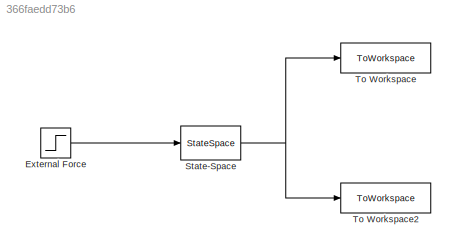
MODEL slx_366faedd73b6
KIND model
CONFIG AbsTol = auto
CONFIG EnableMultiTasking = off
CONFIG FixedStep = auto
CONFIG MaxStep = auto
CONFIG MinStep = auto
CONFIG RelTol = 1e-3
CONFIG SampleTimeConstraint = Unconstrained
CONFIG Solver = ode45
CONFIG SolverName = ode45
CONFIG StartTime = 0.0
CONFIG StopTime = 20
WORKSPACE source: mxarray member
WORKSPACE A_mat = 1
BLOCK [Step] External Force 
  After = stepf
  Before = stepi
  SampleTime = 0
  Time = stept
BLOCK [StateSpace] State-Space
  A = [0, 1; -1/(c *m)   ,-b/m   ]
  B = [0 ; 1/m]
  C = [1 , 0 ; 0 ,1]
  D = 0
  InitialCondition = 0
  Ports = [1, 1]
BLOCK [ToWorkspace] To Workspace
  FixptAsFi = on
  MaxDataPoints = inf
  Ports = [1]
  SampleTime = -1
  VariableName = x1
BLOCK [ToWorkspace] To Workspace2
  FixptAsFi = on
  MaxDataPoints = inf
  Ports = [1]
  SampleTime = -1
  VariableName = x2
LINE External Force :1 -> State-Space:1
NET State-Space:1 -> To Workspace2:1, To Workspace:1
note: NET lines group one-source signal fan-out (src -> all destinations, sorted); 1:1 wires keep LINE
